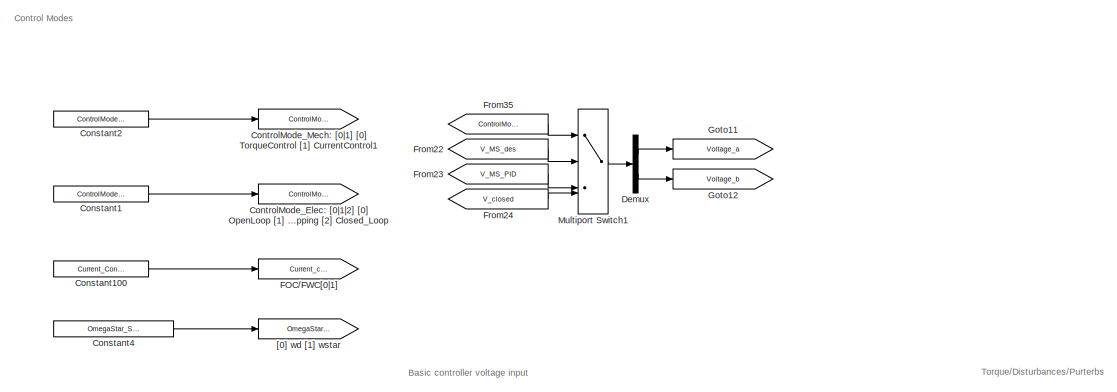
[diagram: root canvas - part 1/5, top center region]
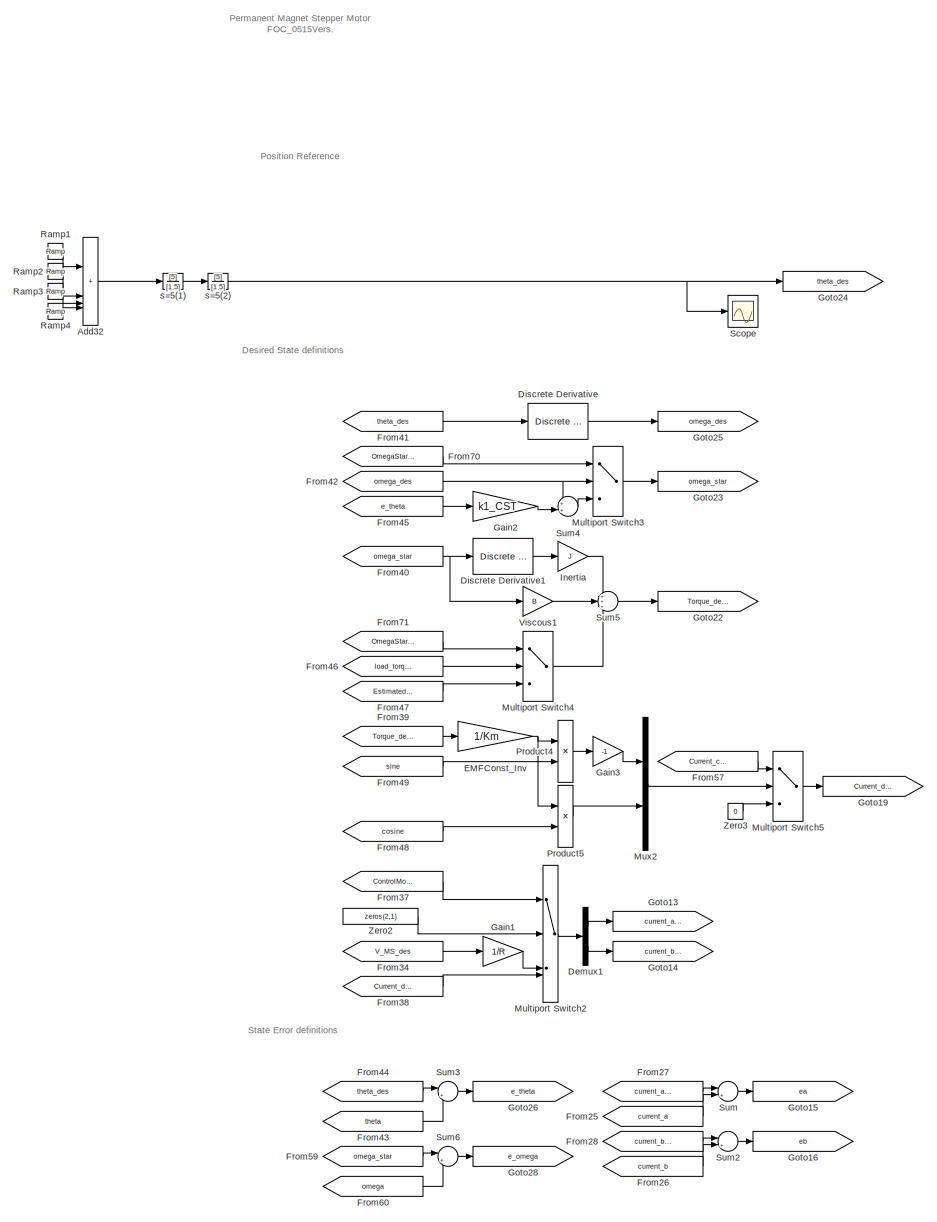
[diagram: root canvas - part 2/5, top left region]
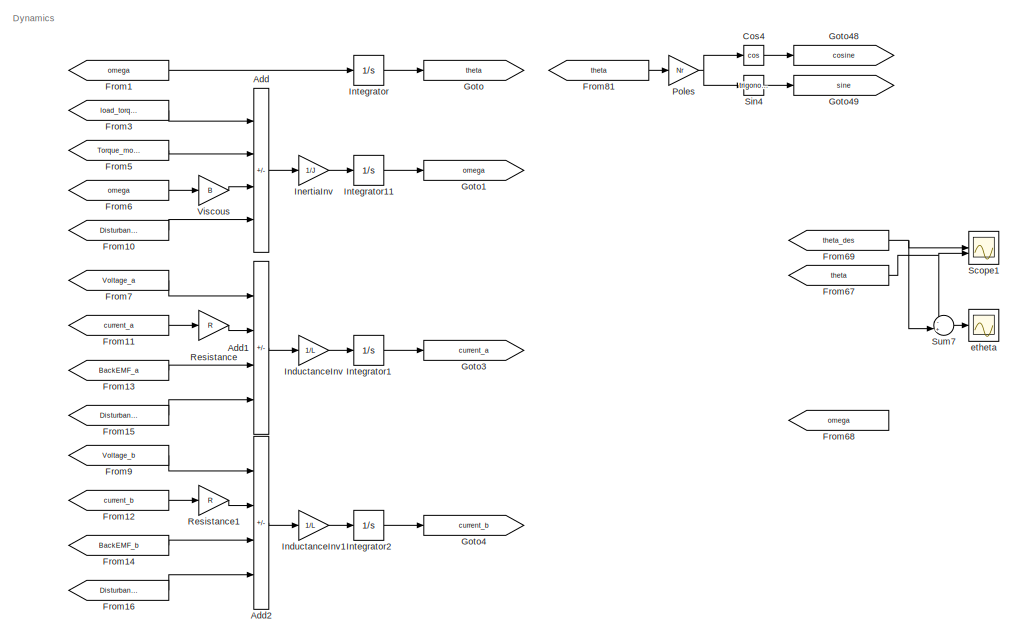
[diagram: root canvas - part 3/5, top right region]
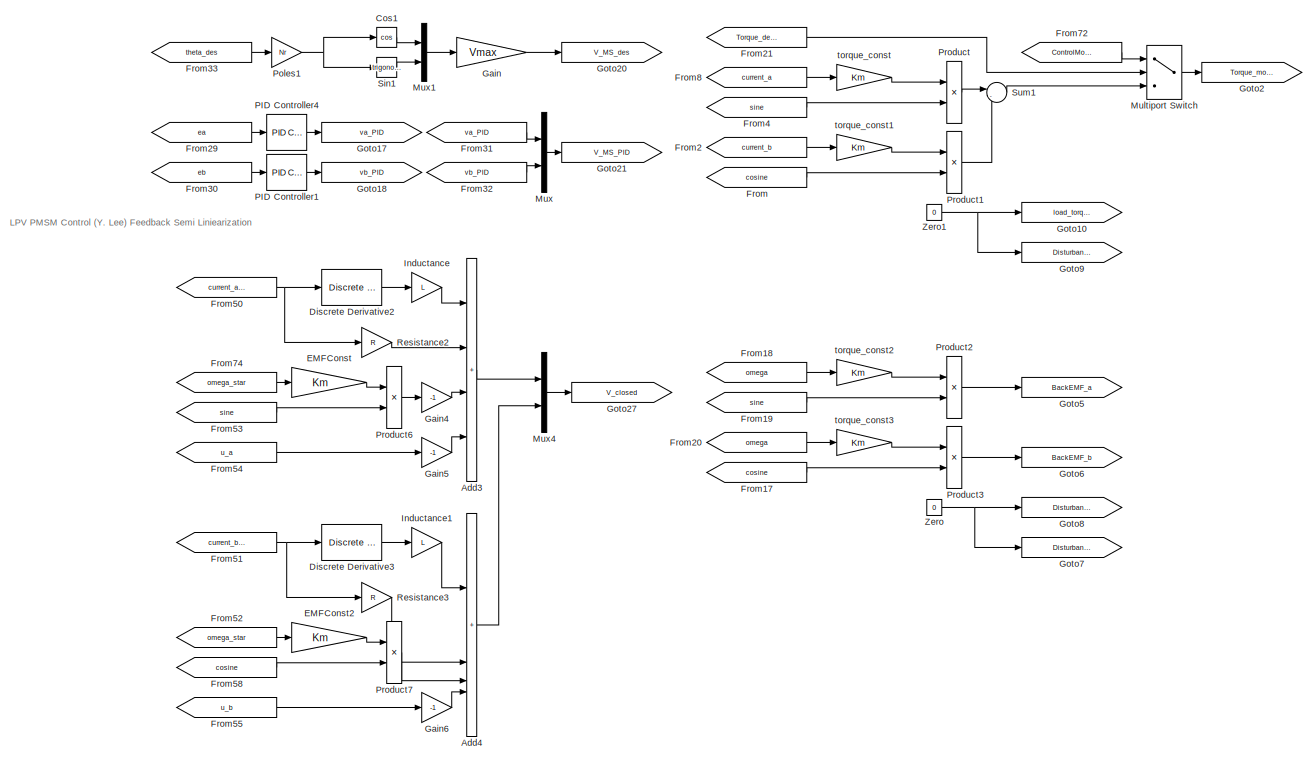
[diagram: root canvas - part 4/5, central region]
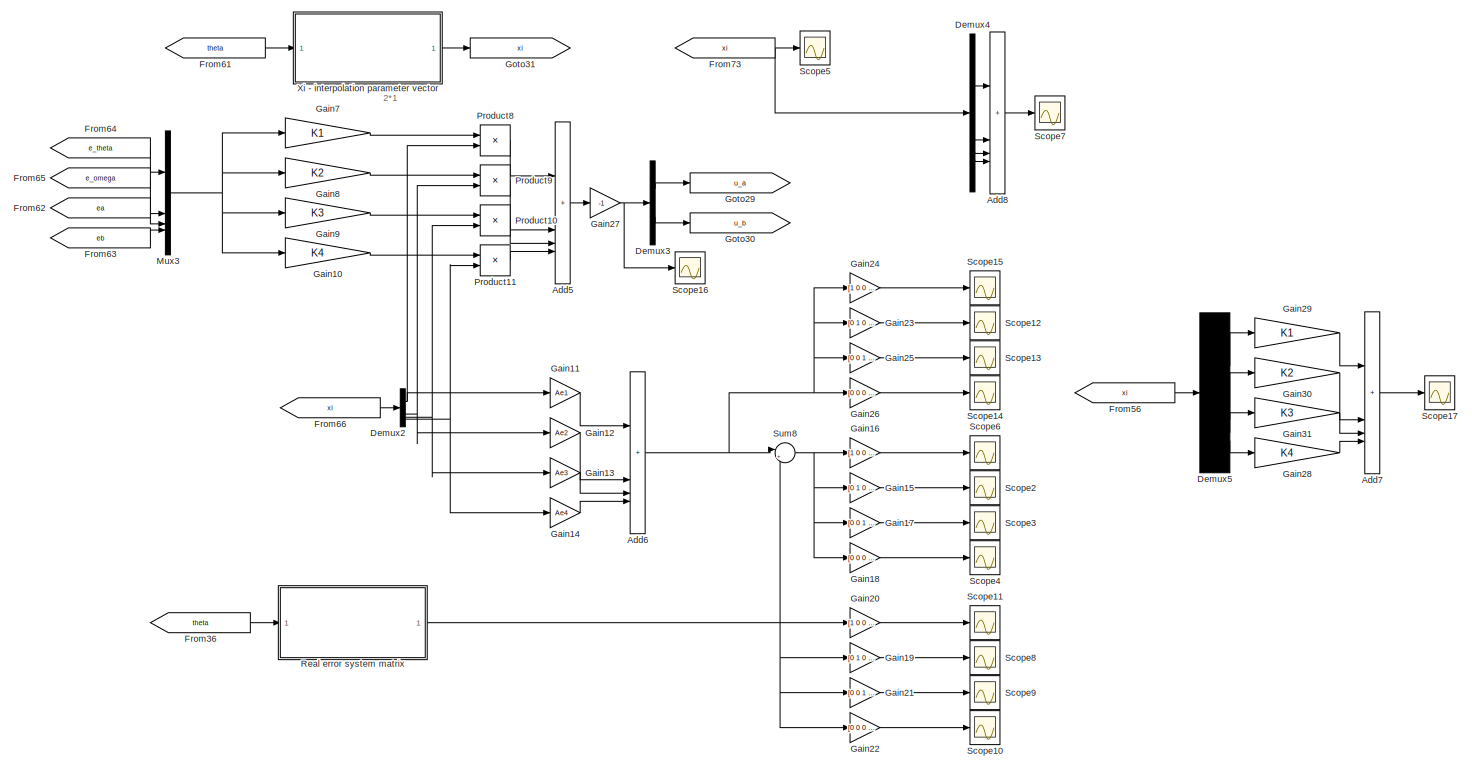
[diagram: root canvas - part 5/5, bottom center region]
MODEL slx_d9de43e4d9a9
KIND model
CONFIG AbsTol = auto
CONFIG EnableMultiTasking = off
CONFIG FixedStep = 1e-4
CONFIG MaxStep = auto
CONFIG MinStep = auto
CONFIG RelTol = 1e-3
CONFIG SampleTimeConstraint = Unconstrained
CONFIG SolverName = ode4
CONFIG StartTime = 0.0
CONFIG StopTime = 15
BLOCK [Sum] Add
  IconShape = rectangular
  Inputs = -+-+
BLOCK [Sum] Add1
  IconShape = rectangular
  Inputs = +-++
BLOCK [Sum] Add2
  IconShape = rectangular
  Inputs = +--+
BLOCK [Sum] Add3
  IconShape = rectangular
  Inputs = ++++
BLOCK [Sum] Add32
  IconShape = rectangular
  Inputs = 4
BLOCK [Sum] Add4
  IconShape = rectangular
  Inputs = 4
BLOCK [Sum] Add5
  IconShape = rectangular
  Inputs = 4
BLOCK [Sum] Add6
  IconShape = rectangular
  Inputs = 4
BLOCK [Sum] Add7
  IconShape = rectangular
  Inputs = 4
BLOCK [Sum] Add8
  IconShape = rectangular
  Inputs = 4
BLOCK [Constant] Constant1
  NameLocation = top
  Value = ControlMode_Elec
BLOCK [Constant] Constant100
  Value = Current_Control
BLOCK [Constant] Constant2
  NameLocation = top
  Value = ControlMode_Mech
BLOCK [Constant] Constant4
  Value = OmegaStar_Selector
BLOCK [Goto] ControlMode_Elec: [0|1|2] [0] OpenLoop [1] PID;Microstepping [2] Closed_Loop
  GotoTag = ControlMode_Elec
BLOCK [Goto] ControlMode_Mech: [0|1] [0] TorqueControl [1] CurrentControl1
  GotoTag = ControlMode_Mech
BLOCK [Trigonometry] Cos1
  Operator = cos
BLOCK [Trigonometry] Cos4
  Operator = cos
BLOCK [Demux] Demux
  Outputs = 2
BLOCK [Demux] Demux1
  Outputs = 2
BLOCK [Demux] Demux2
BLOCK [Demux] Demux3
  Outputs = 2
BLOCK [Demux] Demux4
BLOCK [Demux] Demux5
BLOCK [Reference] Discrete Derivative  REF=simulink/Discrete/Discrete Derivative
  SourceBlock = simulink/Discrete/Discrete Derivative
  SourceType = Discrete Derivative
BLOCK [Reference] Discrete Derivative1  REF=simulink/Discrete/Discrete Derivative
  SourceBlock = simulink/Discrete/Discrete Derivative
  SourceType = Discrete Derivative
BLOCK [Reference] Discrete Derivative2  REF=simulink/Discrete/Discrete Derivative
  SourceBlock = simulink/Discrete/Discrete Derivative
  SourceType = Discrete Derivative
BLOCK [Reference] Discrete Derivative3  REF=simulink/Discrete/Discrete Derivative
  SourceBlock = simulink/Discrete/Discrete Derivative
  SourceType = Discrete Derivative
BLOCK [Gain] EMFConst
  Gain = Km
BLOCK [Gain] EMFConst2
  Gain = Km
BLOCK [Gain] EMFConst_Inv
  Gain = 1/Km
BLOCK [Goto] FOC//FWC[0|1]
  GotoTag = Current_control
BLOCK [From] From
  GotoTag = cosine
BLOCK [From] From1
  GotoTag = omega
BLOCK [From] From10
  GotoTag = Disturbance_mech
BLOCK [From] From11
  GotoTag = current_a
BLOCK [From] From12
  GotoTag = current_b
BLOCK [From] From13
  GotoTag = BackEMF_a
BLOCK [From] From14
  GotoTag = BackEMF_b
BLOCK [From] From15
  GotoTag = Disturbance_curr_a
BLOCK [From] From16
  GotoTag = Disturbance_curr_b
BLOCK [From] From17
  GotoTag = cosine
BLOCK [From] From18
  GotoTag = omega
BLOCK [From] From19
  GotoTag = sine
BLOCK [From] From2
  GotoTag = current_b
BLOCK [From] From20
  GotoTag = omega
BLOCK [From] From21
  GotoTag = Torque_desired
BLOCK [From] From22
  GotoTag = V_MS_des
BLOCK [From] From23
  GotoTag = V_MS_PID
BLOCK [From] From24
  GotoTag = V_closed
BLOCK [From] From25
  GotoTag = current_a
BLOCK [From] From26
  GotoTag = current_b
BLOCK [From] From27
  GotoTag = current_a_des
BLOCK [From] From28
  GotoTag = current_b_des
BLOCK [From] From29
  GotoTag = ea
BLOCK [From] From3
  GotoTag = load_torque
BLOCK [From] From30
  GotoTag = eb
BLOCK [From] From31
  GotoTag = va_PID
BLOCK [From] From32
  GotoTag = vb_PID
BLOCK [From] From33
  GotoTag = theta_des
BLOCK [From] From34
  GotoTag = V_MS_des
BLOCK [From] From35
  GotoTag = ControlMode_Elec
BLOCK [From] From36
  GotoTag = theta
BLOCK [From] From37
  GotoTag = ControlMode_Elec
BLOCK [From] From38
  GotoTag = Current_des_NTM
BLOCK [From] From39
  GotoTag = Torque_desired
BLOCK [From] From4
  GotoTag = sine
BLOCK [From] From40
  GotoTag = omega_star
BLOCK [From] From41
  GotoTag = theta_des
BLOCK [From] From42
  GotoTag = omega_des
BLOCK [From] From43
  GotoTag = theta
BLOCK [From] From44
  GotoTag = theta_des
BLOCK [From] From45
  GotoTag = e_theta
BLOCK [From] From46
  GotoTag = load_torque
BLOCK [From] From47
  GotoTag = Estimated_load
BLOCK [From] From48
  GotoTag = cosine
BLOCK [From] From49
  GotoTag = sine
BLOCK [From] From5
  GotoTag = Torque_motor
BLOCK [From] From50
  GotoTag = current_a_des
BLOCK [From] From51
  GotoTag = current_b_des
BLOCK [From] From52
  GotoTag = omega_star
BLOCK [From] From53
  GotoTag = sine
BLOCK [From] From54
  GotoTag = u_a
BLOCK [From] From55
  GotoTag = u_b
BLOCK [From] From56
  GotoTag = xi
BLOCK [From] From57
  GotoTag = Current_control
BLOCK [From] From58
  GotoTag = cosine
BLOCK [From] From59
  GotoTag = omega_star
BLOCK [From] From6
  GotoTag = omega
BLOCK [From] From60
  GotoTag = omega
BLOCK [From] From61
  GotoTag = theta
BLOCK [From] From62
  GotoTag = ea
BLOCK [From] From63
  GotoTag = eb
BLOCK [From] From64
  GotoTag = e_theta
BLOCK [From] From65
  GotoTag = e_omega
BLOCK [From] From66
  GotoTag = xi
BLOCK [From] From67
  GotoTag = theta
BLOCK [From] From68
  GotoTag = omega
BLOCK [From] From69
  GotoTag = theta_des
BLOCK [From] From7
  GotoTag = Voltage_a
BLOCK [From] From70
  GotoTag = OmegaStar_Selector
BLOCK [From] From71
  GotoTag = OmegaStar_Selector
BLOCK [From] From72
  GotoTag = ControlMode_Mech
BLOCK [From] From73
  GotoTag = xi
BLOCK [From] From74
  GotoTag = omega_star
BLOCK [From] From8
  GotoTag = current_a
BLOCK [From] From81
  GotoTag = theta
BLOCK [From] From9
  GotoTag = Voltage_b
BLOCK [Gain] Gain
  Gain = Vmax
BLOCK [Gain] Gain1
  Gain = 1/R
BLOCK [Gain] Gain10
  Gain = K4
  Multiplication = Matrix(K*u) (u vector)
BLOCK [Gain] Gain11
  Gain = Ae1
BLOCK [Gain] Gain12
  Gain = Ae2
BLOCK [Gain] Gain13
  Gain = Ae3
BLOCK [Gain] Gain14
  Gain = Ae4
BLOCK [Gain] Gain15
  Gain = [0 1 0 0]'
  Multiplication = Matrix(u*K)
BLOCK [Gain] Gain16
  Gain = [1 0 0 0]'
  Multiplication = Matrix(u*K)
BLOCK [Gain] Gain17
  Gain = [0 0 1 0]'
  Multiplication = Matrix(u*K)
BLOCK [Gain] Gain18
  Gain = [0 0 0 1]'
  Multiplication = Matrix(u*K)
BLOCK [Gain] Gain19
  Gain = [0 1 0 0]'
  Multiplication = Matrix(u*K)
BLOCK [Gain] Gain2
  Gain = k1_CST
BLOCK [Gain] Gain20
  Gain = [1 0 0 0]'
  Multiplication = Matrix(u*K)
BLOCK [Gain] Gain21
  Gain = [0 0 1 0]'
  Multiplication = Matrix(u*K)
BLOCK [Gain] Gain22
  Gain = [0 0 0 1]'
  Multiplication = Matrix(u*K)
BLOCK [Gain] Gain23
  Gain = [0 1 0 0]'
  Multiplication = Matrix(u*K)
BLOCK [Gain] Gain24
  Gain = [1 0 0 0]'
  Multiplication = Matrix(u*K)
BLOCK [Gain] Gain25
  Gain = [0 0 1 0]'
  Multiplication = Matrix(u*K)
BLOCK [Gain] Gain26
  Gain = [0 0 0 1]'
  Multiplication = Matrix(u*K)
BLOCK [Gain] Gain27
  Gain = -1
BLOCK [Gain] Gain28
  Gain = K4
BLOCK [Gain] Gain29
  Gain = K1
BLOCK [Gain] Gain3
  Gain = -1
BLOCK [Gain] Gain30
  Gain = K2
BLOCK [Gain] Gain31
  Gain = K3
BLOCK [Gain] Gain4
  Gain = -1
BLOCK [Gain] Gain5
  Gain = -1
BLOCK [Gain] Gain6
  Gain = -1
BLOCK [Gain] Gain7
  Gain = K1
  Multiplication = Matrix(K*u) (u vector)
BLOCK [Gain] Gain8
  Gain = K2
  Multiplication = Matrix(K*u) (u vector)
BLOCK [Gain] Gain9
  Gain = K3
  Multiplication = Matrix(K*u) (u vector)
BLOCK [Goto] Goto
  GotoTag = theta
BLOCK [Goto] Goto1
  GotoTag = omega
BLOCK [Goto] Goto10
  GotoTag = load_torque
BLOCK [Goto] Goto11
  GotoTag = Voltage_a
BLOCK [Goto] Goto12
  GotoTag = Voltage_b
BLOCK [Goto] Goto13
  GotoTag = current_a_des
BLOCK [Goto] Goto14
  GotoTag = current_b_des
BLOCK [Goto] Goto15
  GotoTag = ea
BLOCK [Goto] Goto16
  GotoTag = eb
BLOCK [Goto] Goto17
  GotoTag = va_PID
BLOCK [Goto] Goto18
  GotoTag = vb_PID
BLOCK [Goto] Goto19
  GotoTag = Current_des_NTM
BLOCK [Goto] Goto2
  GotoTag = Torque_motor
BLOCK [Goto] Goto20
  GotoTag = V_MS_des
BLOCK [Goto] Goto21
  GotoTag = V_MS_PID
BLOCK [Goto] Goto22
  GotoTag = Torque_desired
BLOCK [Goto] Goto23
  GotoTag = omega_star
BLOCK [Goto] Goto24
  GotoTag = theta_des
BLOCK [Goto] Goto25
  GotoTag = omega_des
BLOCK [Goto] Goto26
  GotoTag = e_theta
BLOCK [Goto] Goto27
  GotoTag = V_closed
BLOCK [Goto] Goto28
  GotoTag = e_omega
BLOCK [Goto] Goto29
  GotoTag = u_a
BLOCK [Goto] Goto3
  GotoTag = current_a
BLOCK [Goto] Goto30
  GotoTag = u_b
BLOCK [Goto] Goto31
  GotoTag = xi
BLOCK [Goto] Goto4
  GotoTag = current_b
BLOCK [Goto] Goto48
  GotoTag = cosine
BLOCK [Goto] Goto49
  GotoTag = sine
BLOCK [Goto] Goto5
  GotoTag = BackEMF_a
BLOCK [Goto] Goto6
  GotoTag = BackEMF_b
BLOCK [Goto] Goto7
  GotoTag = Disturbance_curr_b
BLOCK [Goto] Goto8
  GotoTag = Disturbance_curr_a
BLOCK [Goto] Goto9
  GotoTag = Disturbance_mech
BLOCK [Gain] Inductance
  Gain = L
BLOCK [Gain] Inductance1
  Gain = L
BLOCK [Gain] InductanceInv
  Gain = 1/L
BLOCK [Gain] InductanceInv1
  Gain = 1/L
BLOCK [Gain] Inertia
  Gain = J
BLOCK [Gain] InertiaInv
  Gain = 1/J
BLOCK [Integrator] Integrator
  InitialCondition = theta0
BLOCK [Integrator] Integrator1
BLOCK [Integrator] Integrator11
BLOCK [Integrator] Integrator2
BLOCK [MultiPortSwitch] Multiport Switch
  DataPortOrder = Zero-based contiguous
  InputSameDT = off
  Inputs = 2
  SaturateOnIntegerOverflow = off
  zeroidx = on
BLOCK [MultiPortSwitch] Multiport Switch1
  DataPortOrder = Zero-based contiguous
  InputSameDT = off
  SaturateOnIntegerOverflow = off
  zeroidx = on
BLOCK [MultiPortSwitch] Multiport Switch2
  DataPortOrder = Zero-based contiguous
  InputSameDT = off
  SaturateOnIntegerOverflow = off
  zeroidx = on
BLOCK [MultiPortSwitch] Multiport Switch3
  DataPortOrder = Zero-based contiguous
  InputSameDT = off
  Inputs = 2
  SaturateOnIntegerOverflow = off
  zeroidx = on
BLOCK [MultiPortSwitch] Multiport Switch4
  DataPortOrder = Zero-based contiguous
  InputSameDT = off
  Inputs = 2
  SaturateOnIntegerOverflow = off
  zeroidx = on
BLOCK [MultiPortSwitch] Multiport Switch5
  DataPortOrder = Zero-based contiguous
  InputSameDT = off
  Inputs = 2
  SaturateOnIntegerOverflow = off
  zeroidx = on
BLOCK [Mux] Mux
  DisplayOption = bar
  Inputs = 2
BLOCK [Mux] Mux1
  DisplayOption = bar
  Inputs = 2
BLOCK [Mux] Mux2
  DisplayOption = bar
  Inputs = 2
BLOCK [Mux] Mux3
  DisplayOption = bar
BLOCK [Mux] Mux4
  DisplayOption = bar
  Inputs = 2
BLOCK [Reference] PID Controller1  REF=slpidlib/PID Controller
  SourceBlock = slpidlib/PID Controller
  SourceType = PID 1dof
BLOCK [Reference] PID Controller4  REF=slpidlib/PID Controller
  SourceBlock = slpidlib/PID Controller
  SourceType = PID 1dof
BLOCK [Gain] Poles
  Gain = Nr
BLOCK [Gain] Poles1
  Gain = Nr
BLOCK [Product] Product
BLOCK [Product] Product1
BLOCK [Product] Product10
BLOCK [Product] Product11
BLOCK [Product] Product2
BLOCK [Product] Product3
BLOCK [Product] Product4
BLOCK [Product] Product5
BLOCK [Product] Product6
BLOCK [Product] Product7
BLOCK [Product] Product8
BLOCK [Product] Product9
BLOCK [Reference] Ramp1  REF=simulink/Sources/Ramp
  SourceBlock = simulink/Sources/Ramp
  SourceType = Ramp
BLOCK [Reference] Ramp2  REF=simulink/Sources/Ramp
  SourceBlock = simulink/Sources/Ramp
  SourceType = Ramp
BLOCK [Reference] Ramp3  REF=simulink/Sources/Ramp
  SourceBlock = simulink/Sources/Ramp
  SourceType = Ramp
BLOCK [Reference] Ramp4  REF=simulink/Sources/Ramp
  SourceBlock = simulink/Sources/Ramp
  SourceType = Ramp
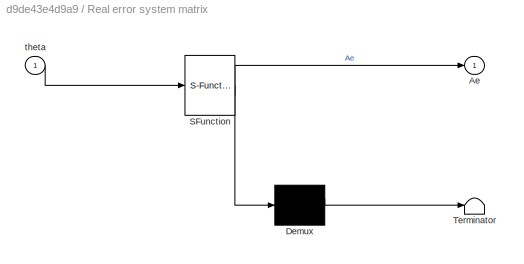
BLOCK [SubSystem] Real error system matrix
  ErrorFcn = Stateflow.Translate.translate
  PermitHierarchicalResolution = ExplicitOnly
  SFBlockType = MATLAB Function
  TreatAsAtomicUnit = on
BLOCK [Demux] Real error system matrix/ Demux 
  Outputs = 1
BLOCK [S-Function] Real error system matrix/ SFunction 
  EnableBusSupport = off
  FunctionName = sf_sfun
  Parameters = B,J,Km,L,Nr,R
  PortCounts = [1 2]
  SFcnIsStateOwnerBlock = off
  SFunctionDeploymentMode = off
  Tag = Stateflow S-Function 1
BLOCK [Terminator] Real error system matrix/ Terminator 
BLOCK [Outport] Real error system matrix/Ae
  VectorParamsAs1DForOutWhenUnconnected = off
BLOCK [Inport] Real error system matrix/theta
BLOCK [Gain] Resistance
  Gain = R
BLOCK [Gain] Resistance1
  Gain = R
BLOCK [Gain] Resistance2
  Gain = R
BLOCK [Gain] Resistance3
  Gain = R
BLOCK [Scope] Scope
  Floating = off
  NumInputPorts = 1
  ScopeSpecificationString = Simulink.scopes.TimeScopeBlockCfg('CurrentConfiguration', extmgr.ConfigurationSet(extmgr.Configuration('Core','General UI',true),extmgr.Configuration('Core','Source UI',true),extmgr.Configuration('Sources','WiredSimulink',true,'DataLoggingVariableName','ScopeData5'),extmgr.Configuration('Visuals','Time Domain',true,'SerializedDisplays',{struct('MinYLimReal','-0.09','MaxYLimReal','0.20999','YLabelR...<+1431ch>
BLOCK [Scope] Scope1
  Floating = off
  NumInputPorts = 2
  ScopeSpecificationString = Simulink.scopes.TimeScopeBlockCfg('CurrentConfiguration', extmgr.ConfigurationSet(extmgr.Configuration('Core','General UI',true,'FigureColor',[1 1 1]),extmgr.Configuration('Core','Source UI',true),extmgr.Configuration('Sources','WiredSimulink',true,'DataLoggingVariableName','theta','DataLogging',true,'DataLoggingSaveFormat','StructureWithTime'),extmgr.Configuration('Visuals','Time Domain',true,'Se...<+1816ch>
BLOCK [Scope] Scope10
  Floating = off
  NumInputPorts = 1
  ScopeSpecificationString = Simulink.scopes.TimeScopeBlockCfg('CurrentConfiguration', extmgr.ConfigurationSet(extmgr.Configuration('Core','General UI',true),extmgr.Configuration('Core','Source UI',true),extmgr.Configuration('Sources','WiredSimulink',true,'DataLoggingVariableName','theta7','DataLoggingSaveFormat','StructureWithTime'),extmgr.Configuration('Visuals','Time Domain',true,'SerializedDisplays',{struct('MinYLimReal',...<+1609ch>
BLOCK [Scope] Scope11
  Floating = off
  NumInputPorts = 1
  ScopeSpecificationString = Simulink.scopes.TimeScopeBlockCfg('CurrentConfiguration', extmgr.ConfigurationSet(extmgr.Configuration('Core','General UI',true),extmgr.Configuration('Core','Source UI',true),extmgr.Configuration('Sources','WiredSimulink',true,'DataLoggingVariableName','theta8','DataLoggingSaveFormat','StructureWithTime'),extmgr.Configuration('Visuals','Time Domain',true,'SerializedDisplays',{struct('MinYLimReal',...<+1602ch>
BLOCK [Scope] Scope12
  Floating = off
  NumInputPorts = 1
  ScopeSpecificationString = Simulink.scopes.TimeScopeBlockCfg('CurrentConfiguration', extmgr.ConfigurationSet(extmgr.Configuration('Core','General UI',true),extmgr.Configuration('Core','Source UI',true),extmgr.Configuration('Sources','WiredSimulink',true,'DataLoggingVariableName','ScopeData1','DataLoggingSaveFormat','StructureWithTime'),extmgr.Configuration('Visuals','Time Domain',true,'SerializedDisplays',{struct('MinYLimRe...<+1612ch>
BLOCK [Scope] Scope13
  Floating = off
  NumInputPorts = 1
  ScopeSpecificationString = Simulink.scopes.TimeScopeBlockCfg('CurrentConfiguration', extmgr.ConfigurationSet(extmgr.Configuration('Core','General UI',true),extmgr.Configuration('Core','Source UI',true),extmgr.Configuration('Sources','WiredSimulink',true,'DataLoggingVariableName','ScopeData2','DataLoggingSaveFormat','StructureWithTime'),extmgr.Configuration('Visuals','Time Domain',true,'SerializedDisplays',{struct('MinYLimRe...<+1613ch>
BLOCK [Scope] Scope14
  Floating = off
  NumInputPorts = 1
  ScopeSpecificationString = Simulink.scopes.TimeScopeBlockCfg('CurrentConfiguration', extmgr.ConfigurationSet(extmgr.Configuration('Core','General UI',true),extmgr.Configuration('Core','Source UI',true),extmgr.Configuration('Sources','WiredSimulink',true,'DataLoggingVariableName','ScopeData3','DataLoggingSaveFormat','StructureWithTime'),extmgr.Configuration('Visuals','Time Domain',true,'SerializedDisplays',{struct('MinYLimRe...<+1612ch>
BLOCK [Scope] Scope15
  Floating = off
  NumInputPorts = 1
  ScopeSpecificationString = Simulink.scopes.TimeScopeBlockCfg('CurrentConfiguration', extmgr.ConfigurationSet(extmgr.Configuration('Core','General UI',true),extmgr.Configuration('Core','Source UI',true),extmgr.Configuration('Sources','WiredSimulink',true,'DataLoggingVariableName','ScopeData4','DataLoggingSaveFormat','StructureWithTime'),extmgr.Configuration('Visuals','Time Domain',true,'SerializedDisplays',{struct('MinYLimRe...<+1606ch>
BLOCK [Scope] Scope16
  Floating = off
  NumInputPorts = 1
  ScopeSpecificationString = Simulink.scopes.TimeScopeBlockCfg('CurrentConfiguration', extmgr.ConfigurationSet(extmgr.Configuration('Core','General UI',true),extmgr.Configuration('Core','Source UI',true),extmgr.Configuration('Sources','WiredSimulink',true,'DataLoggingVariableName','ScopeData6'),extmgr.Configuration('Visuals','Time Domain',true,'SerializedDisplays',{struct('MinYLimReal','-0.00088','MaxYLimReal','0.00088','YLab...<+1407ch>
BLOCK [Scope] Scope17
  Floating = off
  NumInputPorts = 1
  ScopeSpecificationString = Simulink.scopes.TimeScopeBlockCfg('CurrentConfiguration', extmgr.ConfigurationSet(extmgr.Configuration('Core','General UI',true),extmgr.Configuration('Core','Source UI',true),extmgr.Configuration('Sources','WiredSimulink',true,'DataLoggingVariableName','ScopeData1','DataLoggingSaveFormat','StructureWithTime'),extmgr.Configuration('Visuals','Time Domain',true,'SerializedDisplays',{struct('MinYLimRe...<+1580ch>
BLOCK [Scope] Scope2
  Floating = off
  NumInputPorts = 1
  ScopeSpecificationString = Simulink.scopes.TimeScopeBlockCfg('CurrentConfiguration', extmgr.ConfigurationSet(extmgr.Configuration('Core','General UI',true),extmgr.Configuration('Core','Source UI',true),extmgr.Configuration('Sources','WiredSimulink',true,'DataLoggingVariableName','theta1','DataLoggingSaveFormat','StructureWithTime'),extmgr.Configuration('Visuals','Time Domain',true,'SerializedDisplays',{struct('MinYLimReal',...<+1689ch>
BLOCK [Scope] Scope3
  Floating = off
  NumInputPorts = 1
  ScopeSpecificationString = Simulink.scopes.TimeScopeBlockCfg('CurrentConfiguration', extmgr.ConfigurationSet(extmgr.Configuration('Core','General UI',true),extmgr.Configuration('Core','Source UI',true),extmgr.Configuration('Sources','WiredSimulink',true,'DataLoggingVariableName','theta2','DataLoggingSaveFormat','StructureWithTime'),extmgr.Configuration('Visuals','Time Domain',true,'SerializedDisplays',{struct('MinYLimReal',...<+1682ch>
BLOCK [Scope] Scope4
  Floating = off
  NumInputPorts = 1
  ScopeSpecificationString = Simulink.scopes.TimeScopeBlockCfg('CurrentConfiguration', extmgr.ConfigurationSet(extmgr.Configuration('Core','General UI',true),extmgr.Configuration('Core','Source UI',true),extmgr.Configuration('Sources','WiredSimulink',true,'DataLoggingVariableName','theta3','DataLoggingSaveFormat','StructureWithTime'),extmgr.Configuration('Visuals','Time Domain',true,'SerializedDisplays',{struct('MinYLimReal',...<+1683ch>
BLOCK [Scope] Scope5
  Floating = off
  NumInputPorts = 1
  ScopeSpecificationString = Simulink.scopes.TimeScopeBlockCfg('CurrentConfiguration', extmgr.ConfigurationSet(extmgr.Configuration('Core','General UI',true),extmgr.Configuration('Core','Source UI',true),extmgr.Configuration('Sources','WiredSimulink',true,'DataLoggingVariableName','theta4','DataLoggingSaveFormat','StructureWithTime'),extmgr.Configuration('Visuals','Time Domain',true,'SerializedDisplays',{struct('MinYLimReal',...<+1549ch>
BLOCK [Scope] Scope6
  Floating = off
  NumInputPorts = 1
  ScopeSpecificationString = Simulink.scopes.TimeScopeBlockCfg('CurrentConfiguration', extmgr.ConfigurationSet(extmgr.Configuration('Core','General UI',true),extmgr.Configuration('Core','Source UI',true),extmgr.Configuration('Sources','WiredSimulink',true,'DataLoggingVariableName','theta5','DataLoggingSaveFormat','StructureWithTime'),extmgr.Configuration('Visuals','Time Domain',true,'SerializedDisplays',{struct('MinYLimReal',...<+1602ch>
BLOCK [Scope] Scope7
  Floating = off
  NumInputPorts = 1
  ScopeSpecificationString = Simulink.scopes.TimeScopeBlockCfg('CurrentConfiguration', extmgr.ConfigurationSet(extmgr.Configuration('Core','General UI',true),extmgr.Configuration('Core','Source UI',true),extmgr.Configuration('Sources','WiredSimulink',true,'DataLoggingVariableName','theta6','DataLoggingSaveFormat','StructureWithTime'),extmgr.Configuration('Visuals','Time Domain',true,'SerializedDisplays',{struct('MinYLimReal',...<+1531ch>
BLOCK [Scope] Scope8
  Floating = off
  NumInputPorts = 1
  ScopeSpecificationString = Simulink.scopes.TimeScopeBlockCfg('CurrentConfiguration', extmgr.ConfigurationSet(extmgr.Configuration('Core','General UI',true),extmgr.Configuration('Core','Source UI',true),extmgr.Configuration('Sources','WiredSimulink',true,'DataLoggingVariableName','theta9','DataLoggingSaveFormat','StructureWithTime'),extmgr.Configuration('Visuals','Time Domain',true,'SerializedDisplays',{struct('MinYLimReal',...<+1603ch>
BLOCK [Scope] Scope9
  Floating = off
  NumInputPorts = 1
  ScopeSpecificationString = Simulink.scopes.TimeScopeBlockCfg('CurrentConfiguration', extmgr.ConfigurationSet(extmgr.Configuration('Core','General UI',true),extmgr.Configuration('Core','Source UI',true),extmgr.Configuration('Sources','WiredSimulink',true,'DataLoggingVariableName','theta10','DataLoggingSaveFormat','StructureWithTime'),extmgr.Configuration('Visuals','Time Domain',true,'SerializedDisplays',{struct('MinYLimReal'...<+1609ch>
BLOCK [Trigonometry] Sin1
BLOCK [Trigonometry] Sin4
BLOCK [Sum] Sum
  Inputs = |+-
BLOCK [Sum] Sum1
  Inputs = |-+
BLOCK [Sum] Sum2
  Inputs = |+-
BLOCK [Sum] Sum3
  Inputs = |+-
BLOCK [Sum] Sum4
  Inputs = ++|
BLOCK [Sum] Sum5
  Inputs = +++
BLOCK [Sum] Sum6
  Inputs = |+-
BLOCK [Sum] Sum7
  Inputs = -+|
BLOCK [Sum] Sum8
  Inputs = |+-
BLOCK [Gain] Viscous
  Gain = B
BLOCK [Gain] Viscous1
  Gain = B
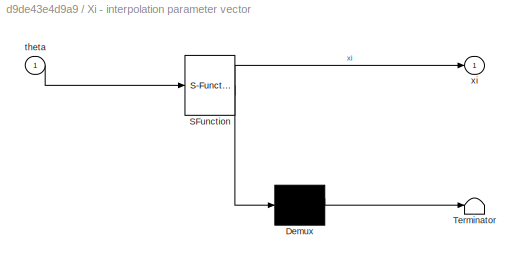
BLOCK [SubSystem] Xi - interpolation parameter vector
  ErrorFcn = Stateflow.Translate.translate
  PermitHierarchicalResolution = ExplicitOnly
  SFBlockType = MATLAB Function
  TreatAsAtomicUnit = on
BLOCK [Demux] Xi - interpolation parameter vector/ Demux 
  Outputs = 1
BLOCK [S-Function] Xi - interpolation parameter vector/ SFunction 
  EnableBusSupport = off
  FunctionName = sf_sfun
  Parameters = Km,Nr,Vhatinv,sigma1,sigma2
  PortCounts = [1 2]
  SFcnIsStateOwnerBlock = off
  SFunctionDeploymentMode = off
  Tag = Stateflow S-Function 2
BLOCK [Terminator] Xi - interpolation parameter vector/ Terminator 
BLOCK [Inport] Xi - interpolation parameter vector/theta
BLOCK [Outport] Xi - interpolation parameter vector/xi
  VectorParamsAs1DForOutWhenUnconnected = off
BLOCK [Constant] Zero
  OutDataTypeStr = Inherit: Inherit via back propagation
  Value = 0
BLOCK [Constant] Zero1
  OutDataTypeStr = Inherit: Inherit via back propagation
  Value = 0
BLOCK [Constant] Zero2
  OutDataTypeStr = Inherit: Inherit via back propagation
  Value = zeros(2,1)
BLOCK [Constant] Zero3
  OutDataTypeStr = Inherit: Inherit via back propagation
  Value = 0
BLOCK [Goto] [0] wd [1] wstar
  GotoTag = OmegaStar_Selector
BLOCK [Scope] etheta
  Floating = off
  NumInputPorts = 1
  ScopeSpecificationString = Simulink.scopes.TimeScopeBlockCfg('CurrentConfiguration', extmgr.ConfigurationSet(extmgr.Configuration('Core','General UI',true),extmgr.Configuration('Core','Source UI',true),extmgr.Configuration('Sources','WiredSimulink',true,'DataLoggingVariableName','ScopeData1'),extmgr.Configuration('Visuals','Time Domain',true,'SerializedDisplays',{struct('MinYLimReal','-0.0000012','MaxYLimReal','0.0000012','...<+1431ch>
BLOCK [TransferFcn] s=5(1)
  Denominator = [1 5]
  Numerator = [5]
BLOCK [TransferFcn] s=5(2)
  Denominator = [1 5]
  Numerator = [5]
BLOCK [Gain] torque_const
  Gain = Km
BLOCK [Gain] torque_const1
  Gain = Km
BLOCK [Gain] torque_const2
  Gain = Km
BLOCK [Gain] torque_const3
  Gain = Km
ANNOTATION (root): 2*1
ANNOTATION (root): LPV PMSM Control (Y. Lee) Feedback Semi Liniearization
ANNOTATION (root): Dynamics
ANNOTATION (root): Torque/Disturbances/Purterbs
ANNOTATION (root): Basic controller voltage input
ANNOTATION (root): Desired State definitions
ANNOTATION (root): State Error definitions
ANNOTATION (root): Control Modes
ANNOTATION (root): Position Reference
ANNOTATION (root): Permanent Magnet Stepper Motor FOC_0515Vers.
LINE Add1:1 -> InductanceInv:1
LINE Add2:1 -> InductanceInv1:1
LINE Add32:1 -> s=5(1):1
LINE Add3:1 -> Mux4:1
LINE Add4:1 -> Mux4:2
LINE Add5:1 -> Gain27:1
NET Add6:1 -> Gain23:1, Gain24:1, Gain25:1, Gain26:1, Sum8:1
LINE Add7:1 -> Scope17:1
LINE Add8:1 -> Scope7:1
LINE Add:1 -> InertiaInv:1
LINE Constant100:1 -> FOC//FWC[0|1]:1
LINE Constant1:1 -> ControlMode_Elec: [0|1|2] [0] OpenLoop [1] PID;Microstepping [2] Closed_Loop:1
LINE Constant2:1 -> ControlMode_Mech: [0|1] [0] TorqueControl [1] CurrentControl1:1
LINE Constant4:1 -> [0] wd [1] wstar:1
LINE Cos1:1 -> Mux1:1
LINE Cos4:1 -> Goto48:1
LINE Demux1:1 -> Goto13:1
LINE Demux1:2 -> Goto14:1
NET Demux2:1 -> Gain11:1, Product8:2
NET Demux2:2 -> Gain12:1, Product9:2
NET Demux2:3 -> Gain13:1, Product10:2
NET Demux2:4 -> Gain14:1, Product11:2
LINE Demux3:1 -> Goto29:1
LINE Demux3:2 -> Goto30:1
LINE Demux4:1 -> Add8:1
LINE Demux4:2 -> Add8:2
LINE Demux4:3 -> Add8:3
LINE Demux4:4 -> Add8:4
LINE Demux5:1 -> Gain29:1
LINE Demux5:2 -> Gain30:1
LINE Demux5:3 -> Gain31:1
LINE Demux5:4 -> Gain28:1
LINE Demux:1 -> Goto11:1
LINE Demux:2 -> Goto12:1
LINE Discrete Derivative1:1 -> Inertia:1
LINE Discrete Derivative2:1 -> Inductance:1
LINE Discrete Derivative3:1 -> Inductance1:1
LINE Discrete Derivative:1 -> Goto25:1
LINE EMFConst2:1 -> Product7:1
LINE EMFConst:1 -> Product6:1
NET EMFConst_Inv:1 -> Product4:1, Product5:1
LINE From10:1 -> Add:4
LINE From11:1 -> Resistance:1
LINE From12:1 -> Resistance1:1
LINE From13:1 -> Add1:3
LINE From14:1 -> Add2:3
LINE From15:1 -> Add1:4
LINE From16:1 -> Add2:4
LINE From17:1 -> Product3:2
LINE From18:1 -> torque_const2:1
LINE From19:1 -> Product2:2
LINE From1:1 -> Integrator:1
LINE From20:1 -> torque_const3:1
LINE From21:1 -> Multiport Switch:2
LINE From22:1 -> Multiport Switch1:2
LINE From23:1 -> Multiport Switch1:3
LINE From24:1 -> Multiport Switch1:4
LINE From25:1 -> Sum:2
LINE From26:1 -> Sum2:2
LINE From27:1 -> Sum:1
LINE From28:1 -> Sum2:1
LINE From29:1 -> PID Controller4:1
LINE From2:1 -> torque_const1:1
LINE From30:1 -> PID Controller1:1
LINE From31:1 -> Mux:1
LINE From32:1 -> Mux:2
LINE From33:1 -> Poles1:1
LINE From34:1 -> Gain1:1
LINE From35:1 -> Multiport Switch1:1
LINE From36:1 -> Real error system matrix:1
LINE From37:1 -> Multiport Switch2:1
LINE From38:1 -> Multiport Switch2:4
LINE From39:1 -> EMFConst_Inv:1
LINE From3:1 -> Add:1
NET From40:1 -> Discrete Derivative1:1, Viscous1:1
LINE From41:1 -> Discrete Derivative:1
NET From42:1 -> Multiport Switch3:2, Sum4:1
LINE From43:1 -> Sum3:2
LINE From44:1 -> Sum3:1
LINE From45:1 -> Gain2:1
LINE From46:1 -> Multiport Switch4:2
LINE From47:1 -> Multiport Switch4:3
LINE From48:1 -> Product5:2
LINE From49:1 -> Product4:2
LINE From4:1 -> Product:2
NET From50:1 -> Discrete Derivative2:1, Resistance2:1
NET From51:1 -> Discrete Derivative3:1, Resistance3:1
LINE From52:1 -> EMFConst2:1
LINE From53:1 -> Product6:2
LINE From54:1 -> Gain5:1
LINE From55:1 -> Gain6:1
LINE From56:1 -> Demux5:1
LINE From57:1 -> Multiport Switch5:1
LINE From58:1 -> Product7:2
LINE From59:1 -> Sum6:1
LINE From5:1 -> Add:2
LINE From60:1 -> Sum6:2
LINE From61:1 -> Xi - interpolation parameter vector:1
LINE From62:1 -> Mux3:3
LINE From63:1 -> Mux3:4
LINE From64:1 -> Mux3:1
LINE From65:1 -> Mux3:2
LINE From66:1 -> Demux2:1
NET From67:1 -> Scope1:2, Sum7:1
NET From69:1 -> Scope1:1, Sum7:2
LINE From6:1 -> Viscous:1
LINE From70:1 -> Multiport Switch3:1
LINE From71:1 -> Multiport Switch4:1
LINE From72:1 -> Multiport Switch:1
NET From73:1 -> Demux4:1, Scope5:1
LINE From74:1 -> EMFConst:1
LINE From7:1 -> Add1:1
LINE From81:1 -> Poles:1
LINE From8:1 -> torque_const:1
LINE From9:1 -> Add2:1
LINE From:1 -> Product1:2
LINE Gain10:1 -> Product11:1
LINE Gain11:1 -> Add6:1
LINE Gain12:1 -> Add6:2
LINE Gain13:1 -> Add6:3
LINE Gain14:1 -> Add6:4
LINE Gain15:1 -> Scope2:1
LINE Gain16:1 -> Scope6:1
LINE Gain17:1 -> Scope3:1
LINE Gain18:1 -> Scope4:1
LINE Gain19:1 -> Scope8:1
LINE Gain1:1 -> Multiport Switch2:3
LINE Gain20:1 -> Scope11:1
LINE Gain21:1 -> Scope9:1
LINE Gain22:1 -> Scope10:1
LINE Gain23:1 -> Scope12:1
LINE Gain24:1 -> Scope15:1
LINE Gain25:1 -> Scope13:1
LINE Gain26:1 -> Scope14:1
NET Gain27:1 -> Demux3:1, Scope16:1
LINE Gain28:1 -> Add7:4
LINE Gain29:1 -> Add7:1
LINE Gain2:1 -> Sum4:2
LINE Gain30:1 -> Add7:2
LINE Gain31:1 -> Add7:3
LINE Gain3:1 -> Mux2:1
LINE Gain4:1 -> Add3:3
LINE Gain5:1 -> Add3:4
LINE Gain6:1 -> Add4:4
LINE Gain7:1 -> Product8:1
LINE Gain8:1 -> Product9:1
LINE Gain9:1 -> Product10:1
LINE Gain:1 -> Goto20:1
LINE Inductance1:1 -> Add4:1
LINE Inductance:1 -> Add3:1
LINE InductanceInv1:1 -> Integrator2:1
LINE InductanceInv:1 -> Integrator1:1
LINE Inertia:1 -> Sum5:1
LINE InertiaInv:1 -> Integrator11:1
LINE Integrator11:1 -> Goto1:1
LINE Integrator1:1 -> Goto3:1
LINE Integrator2:1 -> Goto4:1
LINE Integrator:1 -> Goto:1
LINE Multiport Switch1:1 -> Demux:1
LINE Multiport Switch2:1 -> Demux1:1
LINE Multiport Switch3:1 -> Goto23:1
LINE Multiport Switch4:1 -> Sum5:3
LINE Multiport Switch5:1 -> Goto19:1
LINE Multiport Switch:1 -> Goto2:1
LINE Mux1:1 -> Gain:1
LINE Mux2:1 -> Multiport Switch5:2
NET Mux3:1 -> Gain10:1, Gain7:1, Gain8:1, Gain9:1
LINE Mux4:1 -> Goto27:1
LINE Mux:1 -> Goto21:1
LINE PID Controller1:1 -> Goto18:1
LINE PID Controller4:1 -> Goto17:1
NET Poles1:1 -> Cos1:1, Sin1:1
NET Poles:1 -> Cos4:1, Sin4:1
LINE Product10:1 -> Add5:3
LINE Product11:1 -> Add5:4
LINE Product1:1 -> Sum1:2
LINE Product2:1 -> Goto5:1
LINE Product3:1 -> Goto6:1
LINE Product4:1 -> Gain3:1
LINE Product5:1 -> Mux2:2
LINE Product6:1 -> Gain4:1
LINE Product7:1 -> Add4:3
LINE Product8:1 -> Add5:1
LINE Product9:1 -> Add5:2
LINE Product:1 -> Sum1:1
LINE Ramp1:1 -> Add32:1
LINE Ramp2:1 -> Add32:2
LINE Ramp3:1 -> Add32:3
LINE Ramp4:1 -> Add32:4
NET Real error system matrix:1 -> Gain19:1, Gain20:1, Gain21:1, Gain22:1, Sum8:2
LINE Resistance1:1 -> Add2:2
LINE Resistance2:1 -> Add3:2
LINE Resistance3:1 -> Add4:2
LINE Resistance:1 -> Add1:2
LINE Sin1:1 -> Mux1:2
LINE Sin4:1 -> Goto49:1
LINE Sum1:1 -> Multiport Switch:3
LINE Sum2:1 -> Goto16:1
LINE Sum3:1 -> Goto26:1
LINE Sum4:1 -> Multiport Switch3:3
LINE Sum5:1 -> Goto22:1
LINE Sum6:1 -> Goto28:1
LINE Sum7:1 -> etheta:1
NET Sum8:1 -> Gain15:1, Gain16:1, Gain17:1, Gain18:1
LINE Sum:1 -> Goto15:1
LINE Viscous1:1 -> Sum5:2
LINE Viscous:1 -> Add:3
LINE Xi - interpolation parameter vector:1 -> Goto31:1
NET Zero1:1 -> Goto10:1, Goto9:1
LINE Zero2:1 -> Multiport Switch2:2
LINE Zero3:1 -> Multiport Switch5:3
NET Zero:1 -> Goto7:1, Goto8:1
LINE s=5(1):1 -> s=5(2):1
NET s=5(2):1 -> Goto24:1, Scope:1
LINE torque_const1:1 -> Product1:1
LINE torque_const2:1 -> Product2:1
LINE torque_const3:1 -> Product3:1
LINE torque_const:1 -> Product:1
note: NET lines group one-source signal fan-out (src -> all destinations, sorted); 1:1 wires keep LINE
CHART Real error system matrix states=1 transitions=1
  STATE_LABEL 'eML_blk_kernel()'
  STATE_LABEL 'SCRIPT:\nfunction Ae = fcn(theta,B,Km,J,Nr,R,L)\n\nAe = [0 1 0 0;0 -B/J -Km/J*sin(Nr*theta) Km/J*cos(Nr*theta); 0 Km/L*sin(Nr*theta) -R/L 0;0 -Km/L*cos(Nr*theta) 0 -R/L];'
CHART Xi - interpolation parameter vector states=1 transitions=1
  STATE_LABEL 'eML_blk_kernel()'
  STATE_LABEL "SCRIPT:\nfunction xi = fcn(theta, Vhatinv, sigma1, sigma2, Km, Nr)\neta1 = Km*sin(Nr*theta);\neta2 = Km*cos(Nr*theta);\netahat = [[eta1 eta2] sigma1 sigma2]';\nxi = Vhatinv*etahat;"
CHART  states=0 transitions=0
CHART  states=0 transitions=0
